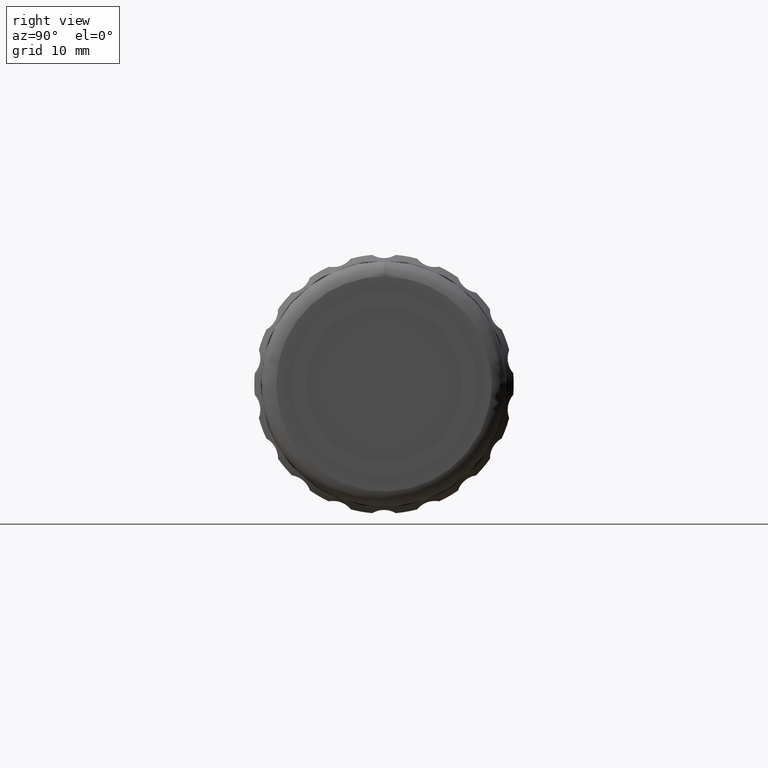
[diagram: clean part render]
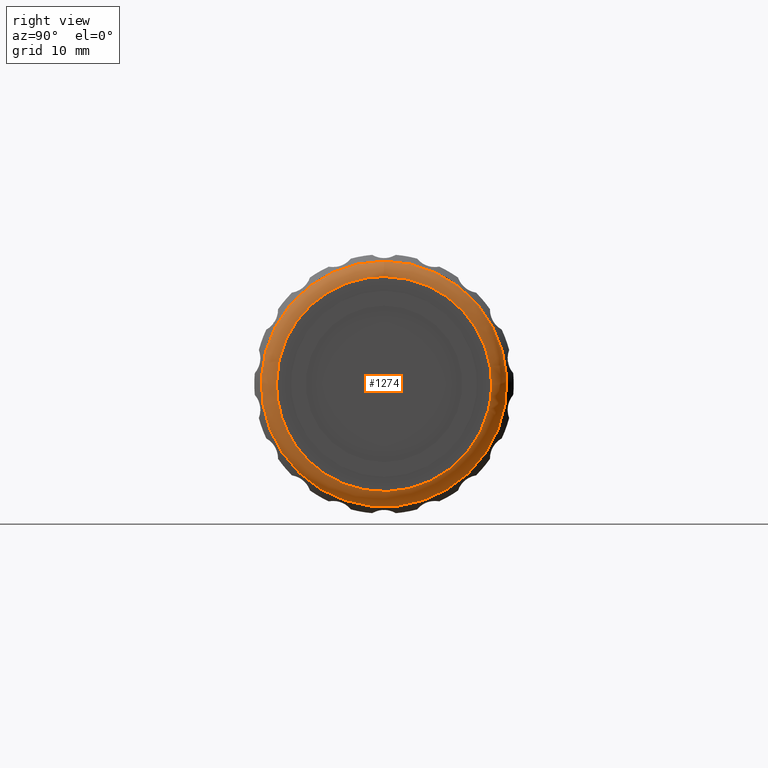
[diagram: same view with one face highlighted and labeled with its STEP entity id]
A machine part, right view. The second image highlights one B-rep face of the part: STEP entity #1274.
In plain terms, the highlighted face is a freeform B-spline surface patch.
Its self-contained STEP definition (entity closure, byte-faithful):
#13 = CARTESIAN_POINT ( 'NONE',  ( 87.93703999999999610, 46.02096199999999726, 0.000000000000000000 ) ) ;
#25 =( BOUNDED_CURVE ( )  B_SPLINE_CURVE ( 3, ( #300, #1484, #483, #436 ),
 .UNSPECIFIED., .F., .T. ) 
 B_SPLINE_CURVE_WITH_KNOTS ( ( 4, 4 ),
 ( 0.000000000000000000, 1.000000000000000000 ),
 .UNSPECIFIED. ) 
 CURVE ( )  GEOMETRIC_REPRESENTATION_ITEM ( )  RATIONAL_B_SPLINE_CURVE ( ( 1.000000000000000000, 0.8047378541243649375, 0.8047378541243649375, 1.000000000000000000 ) ) 
 REPRESENTATION_ITEM ( '' )  );
#104 = CARTESIAN_POINT ( 'NONE',  ( 89.10861287525381158, 29.92096199999999584, -32.20000000000000284 ) ) ;
#127 = CARTESIAN_POINT ( 'NONE',  ( 89.93703999999999610, 31.92096199999999584, 0.000000000000000000 ) ) ;
#137 = CARTESIAN_POINT ( 'NONE',  ( 89.93703999999999610, 60.12096199999999868, 0.000000000000000000 ) ) ;
#142 = EDGE_CURVE ( 'NONE', #2060, #647, #1336, .T. ) ;
#146 = CARTESIAN_POINT ( 'NONE',  ( 89.93703999999999610, 54.28055077053935662, 14.09999999999999964 ) ) ;
#270 = CARTESIAN_POINT ( 'NONE',  ( 89.93703999999999610, 31.92096199999999584, -1.036051192078660836E-15 ) ) ;
#275 = CARTESIAN_POINT ( 'NONE',  ( 87.93703999999999610, 46.02096199999999726, 16.10000000000000142 ) ) ;
#287 = CARTESIAN_POINT ( 'NONE',  ( 89.10861287525381158, 62.12096199999999868, 32.20000000000000284 ) ) ;
#295 = ORIENTED_EDGE ( 'NONE', *, *, #2015, .T. ) ;
#300 = CARTESIAN_POINT ( 'NONE',  ( 89.93703999999999610, 31.92096199999999584, -1.036051192078660836E-15 ) ) ;
#319 = CARTESIAN_POINT ( 'NONE',  ( 89.93703999999999610, 60.12096199999999868, 8.259588770539359359 ) ) ;
#436 = CARTESIAN_POINT ( 'NONE',  ( 89.93703999999999610, 46.02096199999999726, 14.10000000000000142 ) ) ;
#450 = EDGE_LOOP ( 'NONE', ( #1352, #859, #295 ) ) ;
#463 = EDGE_LOOP ( 'NONE', ( #519 ) ) ;
#467 = CARTESIAN_POINT ( 'NONE',  ( 87.93703999999999610, 62.12096200000000579, -32.20000000000000284 ) ) ;
#480 = CARTESIAN_POINT ( 'NONE',  ( 87.93703999999999610, 29.92096199999999584, -32.20000000000000284 ) ) ;
#483 = CARTESIAN_POINT ( 'NONE',  ( 89.93703999999999610, 37.76137322946063790, 14.09999999999999964 ) ) ;
#495 = CARTESIAN_POINT ( 'NONE',  ( 89.93703999999999610, 61.29253487525379995, 0.000000000000000000 ) ) ;
#519 = ORIENTED_EDGE ( 'NONE', *, *, #873, .F. ) ;
#638 = CARTESIAN_POINT ( 'NONE',  ( 87.93703999999999610, 62.12096199999999868, 0.000000000000000000 ) ) ;
#639 = VERTEX_POINT ( 'NONE', #275 ) ;
#647 = VERTEX_POINT ( 'NONE', #1816 ) ;
#652 = CARTESIAN_POINT ( 'NONE',  ( 89.93704000000001031, 61.29253487525381416, 30.54314575050762315 ) ) ;
#662 = VERTEX_POINT ( 'NONE', #270 ) ;
#679 = FACE_OUTER_BOUND ( 'NONE', #450, .T. ) ;
#800 = FACE_OUTER_BOUND ( 'NONE', #463, .T. ) ;
#802 = CARTESIAN_POINT ( 'NONE',  ( 89.93703999999999610, 46.02096199999999726, 14.10000000000000142 ) ) ;
#808 = CARTESIAN_POINT ( 'NONE',  ( 89.93703999999999610, 31.92096199999999229, -28.20000000000000284 ) ) ;
#833 = CARTESIAN_POINT ( 'NONE',  ( 89.93704000000001031, 61.29253487525381416, -30.54314575050762315 ) ) ;
#836 = CIRCLE ( 'NONE', #1743, 16.10000000000000142 ) ;
#846 = CARTESIAN_POINT ( 'NONE',  ( 89.93703999999999610, 60.12096199999999868, -28.20000000000000284 ) ) ;
#859 = ORIENTED_EDGE ( 'NONE', *, *, #1187, .T. ) ;
#873 = EDGE_CURVE ( 'NONE', #639, #639, #836, .T. ) ;
#950 =( BOUNDED_SURFACE ( )  B_SPLINE_SURFACE ( 3, 3, ( 
 ( #1895, #467, #480, #1682, #996, #1370, #638 ),
 ( #2087, #2207, #104, #2257, #2038, #287, #1199 ),
 ( #495, #833, #1161, #1186, #2064, #652, #1331 ),
 ( #137, #846, #808, #127, #1171, #1883, #2052 ) ),
 .UNSPECIFIED., .F., .T., .T. ) 
 B_SPLINE_SURFACE_WITH_KNOTS ( ( 4, 4 ),
 ( 4, 3, 4 ),
 ( 0.000000000000000000, 1.000000000000000000 ),
 ( 0.000000000000000000, 0.5000000000000000000, 1.000000000000000000 ),
 .UNSPECIFIED. ) 
 GEOMETRIC_REPRESENTATION_ITEM ( )  RATIONAL_B_SPLINE_SURFACE ( (
 ( 1.000000000000000000, 0.3333333333333333148, 0.3333333333333333148, 1.000000000000000000, 0.3333333333333333148, 0.3333333333333333148, 1.000000000000000000),
 ( 0.8047378541243649375, 0.2682459513747882940, 0.2682459513747882940, 0.8047378541243649375, 0.2682459513747882940, 0.2682459513747882940, 0.8047378541243649375),
 ( 0.8047378541243649375, 0.2682459513747882940, 0.2682459513747882940, 0.8047378541243649375, 0.2682459513747882940, 0.2682459513747882940, 0.8047378541243649375),
 ( 1.000000000000000000, 0.3333333333333333148, 0.3333333333333333148, 1.000000000000000000, 0.3333333333333333148, 0.3333333333333333148, 1.000000000000000000) ) ) 
 REPRESENTATION_ITEM ( '' )  SURFACE ( )  );
#996 = CARTESIAN_POINT ( 'NONE',  ( 87.93703999999999610, 29.92096199999999584, 32.20000000000000284 ) ) ;
#1079 = DIRECTION ( 'NONE',  ( 0.000000000000000000, 0.000000000000000000, 1.000000000000000000 ) ) ;
#1161 = CARTESIAN_POINT ( 'NONE',  ( 89.93704000000001031, 30.74938912474619102, -30.54314575050762315 ) ) ;
#1171 = CARTESIAN_POINT ( 'NONE',  ( 89.93703999999999610, 31.92096199999999229, 28.20000000000000284 ) ) ;
#1186 = CARTESIAN_POINT ( 'NONE',  ( 89.93703999999999610, 30.74938912474618391, 0.000000000000000000 ) ) ;
#1187 = EDGE_CURVE ( 'NONE', #647, #662, #1408, .T. ) ;
#1199 = CARTESIAN_POINT ( 'NONE',  ( 89.10861287525381158, 62.12096199999999868, 0.000000000000000000 ) ) ;
#1274 = ADVANCED_FACE ( 'NONE', ( #679, #800 ), #950, .T. ) ;
#1331 = CARTESIAN_POINT ( 'NONE',  ( 89.93703999999999610, 61.29253487525379995, 0.000000000000000000 ) ) ;
#1336 =( BOUNDED_CURVE ( )  B_SPLINE_CURVE ( 3, ( #1563, #146, #319, #1509 ),
 .UNSPECIFIED., .F., .F. ) 
 B_SPLINE_CURVE_WITH_KNOTS ( ( 4, 4 ),
 ( 0.000000000000000000, 1.000000000000000000 ),
 .UNSPECIFIED. ) 
 CURVE ( )  GEOMETRIC_REPRESENTATION_ITEM ( )  RATIONAL_B_SPLINE_CURVE ( ( 1.000000000000000000, 0.8047378541243649375, 0.8047378541243649375, 1.000000000000000000 ) ) 
 REPRESENTATION_ITEM ( '' )  );
#1352 = ORIENTED_EDGE ( 'NONE', *, *, #142, .T. ) ;
#1370 = CARTESIAN_POINT ( 'NONE',  ( 87.93703999999999610, 62.12096200000000579, 32.20000000000000284 ) ) ;
#1408 =( BOUNDED_CURVE ( )  B_SPLINE_CURVE ( 3, ( #1980, #1626, #1821, #2017 ),
 .UNSPECIFIED., .F., .T. ) 
 B_SPLINE_CURVE_WITH_KNOTS ( ( 4, 4 ),
 ( 0.000000000000000000, 1.000000000000000000 ),
 .UNSPECIFIED. ) 
 CURVE ( )  GEOMETRIC_REPRESENTATION_ITEM ( )  RATIONAL_B_SPLINE_CURVE ( ( 1.000000000000000000, 0.3333333333333333703, 0.3333333333333333703, 1.000000000000000000 ) ) 
 REPRESENTATION_ITEM ( '' )  );
#1484 = CARTESIAN_POINT ( 'NONE',  ( 89.93703999999999610, 31.92096199999999584, 8.259588770539357583 ) ) ;
#1509 = CARTESIAN_POINT ( 'NONE',  ( 89.93703999999999610, 60.12096199999999868, 0.000000000000000000 ) ) ;
#1563 = CARTESIAN_POINT ( 'NONE',  ( 89.93703999999999610, 46.02096199999999726, 14.10000000000000142 ) ) ;
#1626 = CARTESIAN_POINT ( 'NONE',  ( 89.93703999999999610, 60.12096200000000579, -28.19999999999999929 ) ) ;
#1682 = CARTESIAN_POINT ( 'NONE',  ( 87.93703999999999610, 29.92096199999999584, 0.000000000000000000 ) ) ;
#1743 = AXIS2_PLACEMENT_3D ( 'NONE', #13, #2118, #1079 ) ;
#1816 = CARTESIAN_POINT ( 'NONE',  ( 89.93703999999999610, 60.12096199999999868, 0.000000000000000000 ) ) ;
#1821 = CARTESIAN_POINT ( 'NONE',  ( 89.93703999999999610, 31.92096199999999584, -28.19999999999999929 ) ) ;
#1883 = CARTESIAN_POINT ( 'NONE',  ( 89.93703999999999610, 60.12096199999999868, 28.20000000000000284 ) ) ;
#1895 = CARTESIAN_POINT ( 'NONE',  ( 87.93703999999999610, 62.12096199999999868, 0.000000000000000000 ) ) ;
#1980 = CARTESIAN_POINT ( 'NONE',  ( 89.93703999999999610, 60.12096199999999868, 0.000000000000000000 ) ) ;
#2015 = EDGE_CURVE ( 'NONE', #662, #2060, #25, .T. ) ;
#2017 = CARTESIAN_POINT ( 'NONE',  ( 89.93703999999999610, 31.92096199999999584, -1.036051192078660836E-15 ) ) ;
#2038 = CARTESIAN_POINT ( 'NONE',  ( 89.10861287525381158, 29.92096199999999584, 32.20000000000000284 ) ) ;
#2052 = CARTESIAN_POINT ( 'NONE',  ( 89.93703999999999610, 60.12096199999999868, 0.000000000000000000 ) ) ;
#2060 = VERTEX_POINT ( 'NONE', #802 ) ;
#2064 = CARTESIAN_POINT ( 'NONE',  ( 89.93704000000001031, 30.74938912474618391, 30.54314575050763025 ) ) ;
#2087 = CARTESIAN_POINT ( 'NONE',  ( 89.10861287525381158, 62.12096199999999868, 0.000000000000000000 ) ) ;
#2118 = DIRECTION ( 'NONE',  ( -1.000000000000000000, 0.000000000000000000, 0.000000000000000000 ) ) ;
#2207 = CARTESIAN_POINT ( 'NONE',  ( 89.10861287525381158, 62.12096199999999868, -32.20000000000000284 ) ) ;
#2257 = CARTESIAN_POINT ( 'NONE',  ( 89.10861287525381158, 29.92096199999999939, 0.000000000000000000 ) ) ;